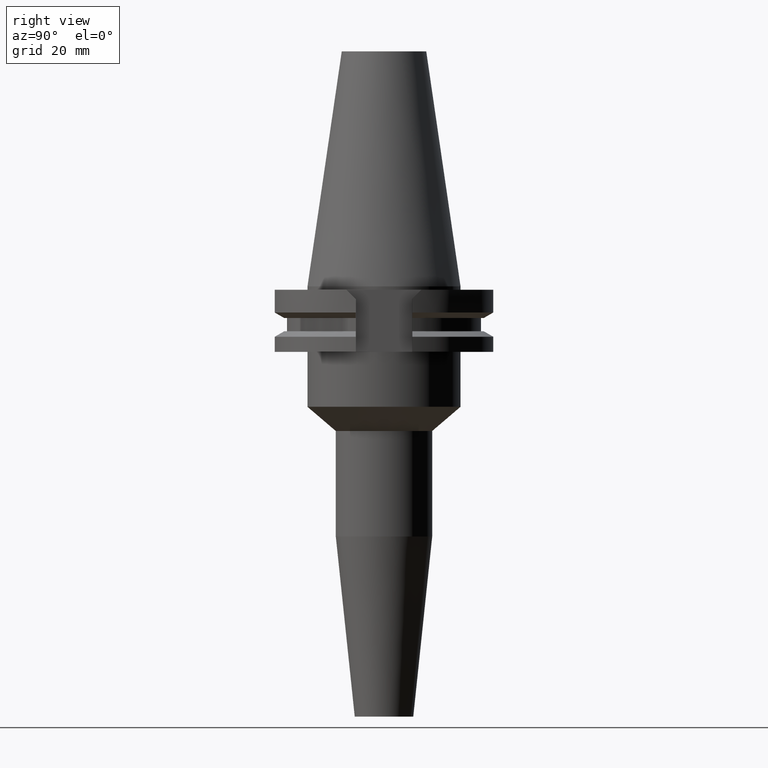
[diagram: clean part render]
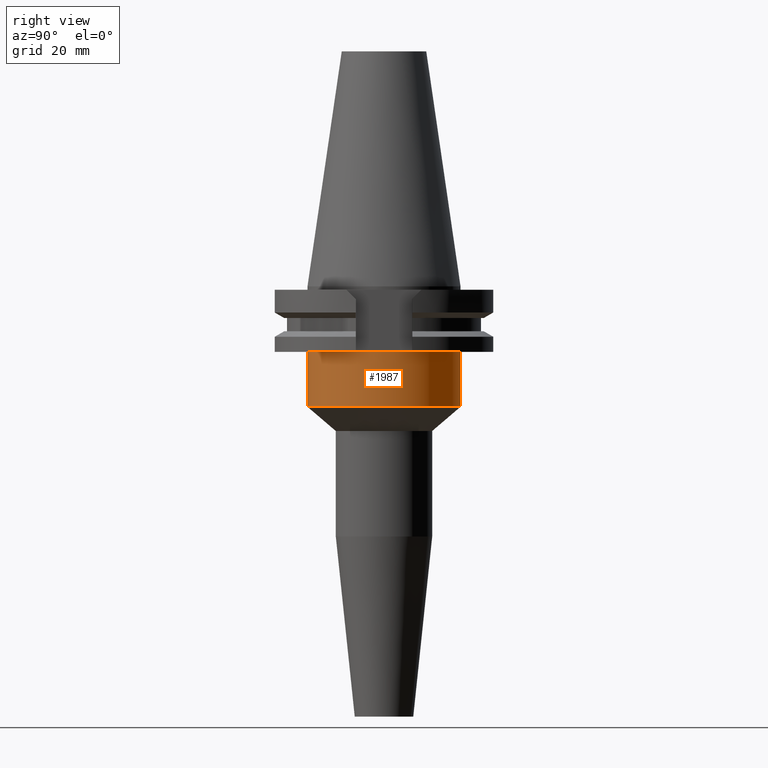
[diagram: same view with one face highlighted and labeled with its STEP entity id]
A machine part, right view. The second image highlights one B-rep face of the part: STEP entity #1987.
In plain terms, the highlighted cylindrical surface (partial cylindrical patch) has radius 22.225 mm, axis along (0, 0, -1).
Its self-contained STEP definition (entity closure, byte-faithful):
#259=CARTESIAN_POINT('',(0.E0,2.178799736533E-14,-1.905E1));
#260=DIRECTION('',(0.E0,0.E0,-1.E0));
#261=DIRECTION('',(0.E0,1.E0,0.E0));
#262=AXIS2_PLACEMENT_3D('',#259,#260,#261);
#848=DIRECTION('',(0.E0,0.E0,-1.E0));
#849=VECTOR('',#848,1.595E1);
#850=CARTESIAN_POINT('',(0.E0,-2.2225E1,-1.905E1));
#851=LINE('',#850,#849);
#855=DIRECTION('',(0.E0,0.E0,-1.E0));
#856=VECTOR('',#855,1.595E1);
#857=CARTESIAN_POINT('',(0.E0,2.2225E1,-1.905E1));
#858=LINE('',#857,#856);
#877=CARTESIAN_POINT('',(0.E0,0.E0,-3.5E1));
#878=DIRECTION('',(0.E0,0.E0,1.E0));
#879=DIRECTION('',(0.E0,-1.E0,0.E0));
#880=AXIS2_PLACEMENT_3D('',#877,#878,#879);
#1218=CARTESIAN_POINT('',(0.E0,2.2225E1,-3.5E1));
#1219=VERTEX_POINT('',#1218);
#1220=CARTESIAN_POINT('',(0.E0,-2.2225E1,-3.5E1));
#1221=VERTEX_POINT('',#1220);
#1222=CARTESIAN_POINT('',(0.E0,2.2225E1,-1.905E1));
#1223=VERTEX_POINT('',#1222);
#1224=CARTESIAN_POINT('',(0.E0,-2.2225E1,-1.905E1));
#1225=VERTEX_POINT('',#1224);
#1975=CARTESIAN_POINT('',(0.E0,2.178799736533E-14,7.79125E1));
#1976=DIRECTION('',(0.E0,0.E0,-1.E0));
#1977=DIRECTION('',(0.E0,-1.E0,0.E0));
#1978=AXIS2_PLACEMENT_3D('',#1975,#1976,#1977);
#1979=CYLINDRICAL_SURFACE('',#1978,2.2225E1);
#1980=ORIENTED_EDGE('',*,*,#1965,.T.);
#1982=ORIENTED_EDGE('',*,*,#1981,.F.);
#1983=ORIENTED_EDGE('',*,*,#1968,.F.);
#1984=ORIENTED_EDGE('',*,*,#1513,.F.);
#1985=EDGE_LOOP('',(#1980,#1982,#1983,#1984));
#1986=FACE_OUTER_BOUND('',#1985,.F.);
#263=CIRCLE('',#262,2.2225E1);
#881=CIRCLE('',#880,2.2225E1);
#1513=EDGE_CURVE('',#1223,#1225,#263,.T.);
#1965=EDGE_CURVE('',#1223,#1219,#858,.T.);
#1968=EDGE_CURVE('',#1225,#1221,#851,.T.);
#1981=EDGE_CURVE('',#1221,#1219,#881,.T.);
#1987=ADVANCED_FACE('',(#1986),#1979,.T.);